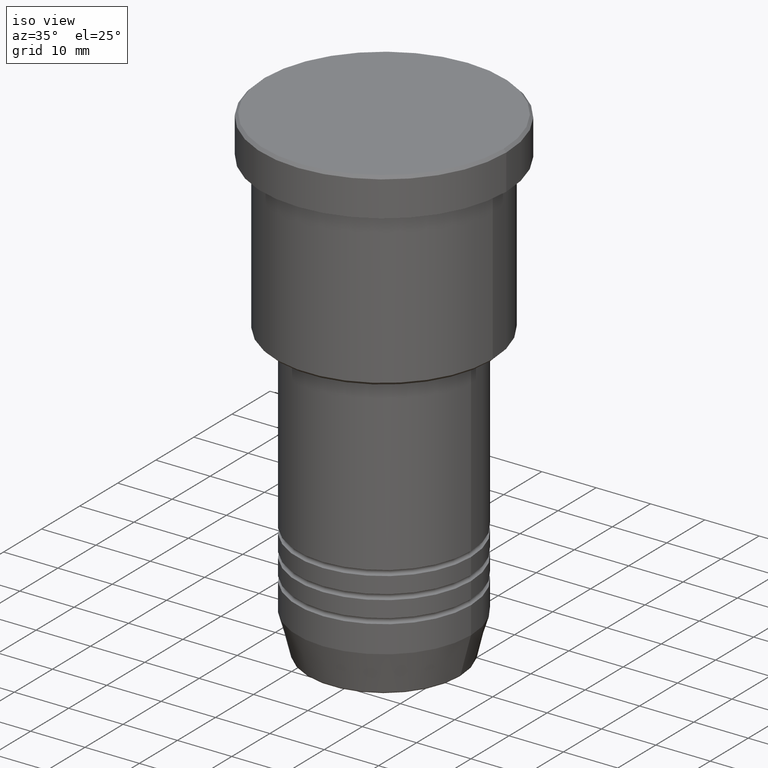
[diagram: clean part render]
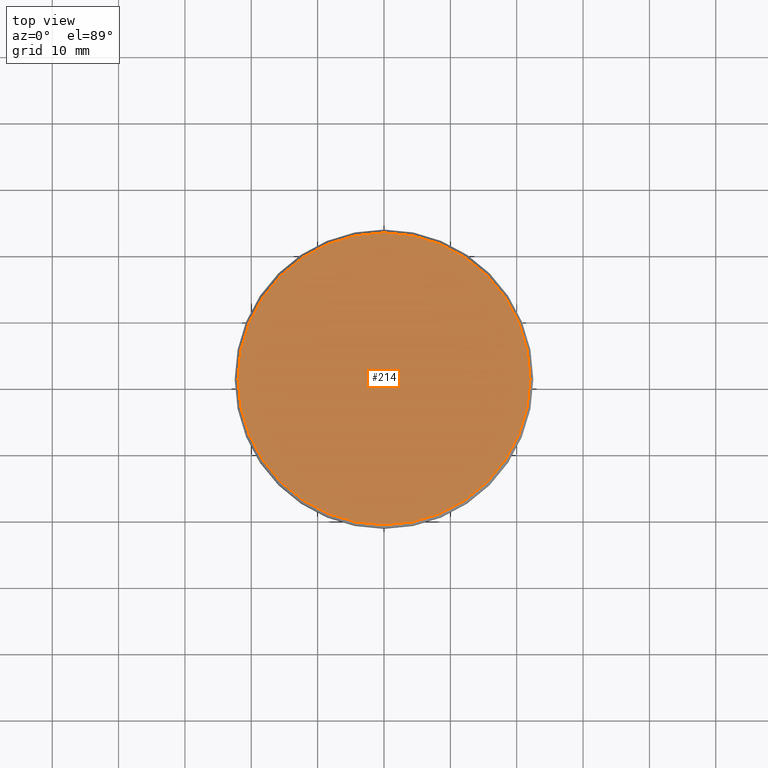
[diagram: tour spotlight — one face highlighted and labeled with its STEP entity id]
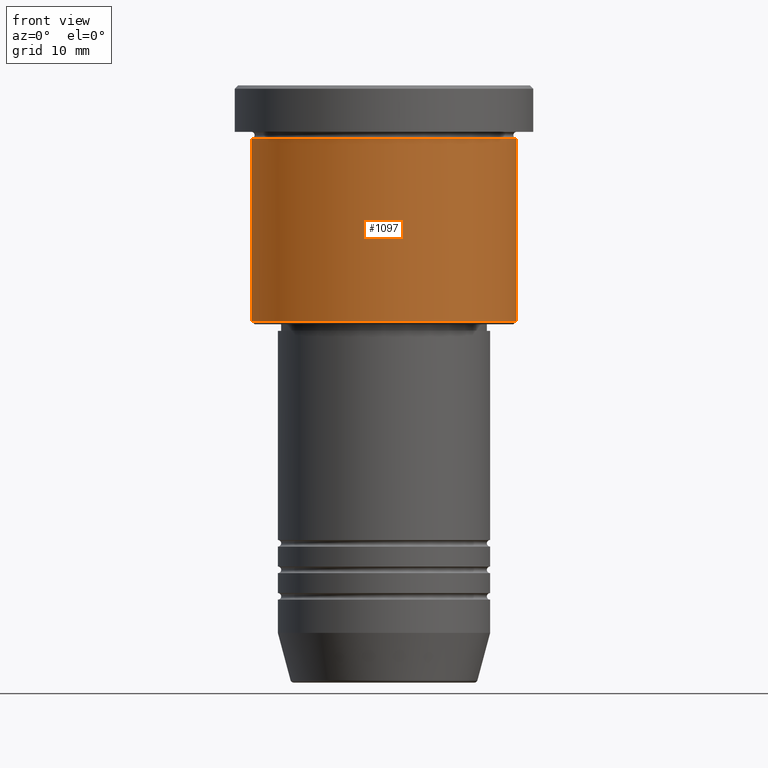
[diagram: tour spotlight — one face highlighted and labeled with its STEP entity id]
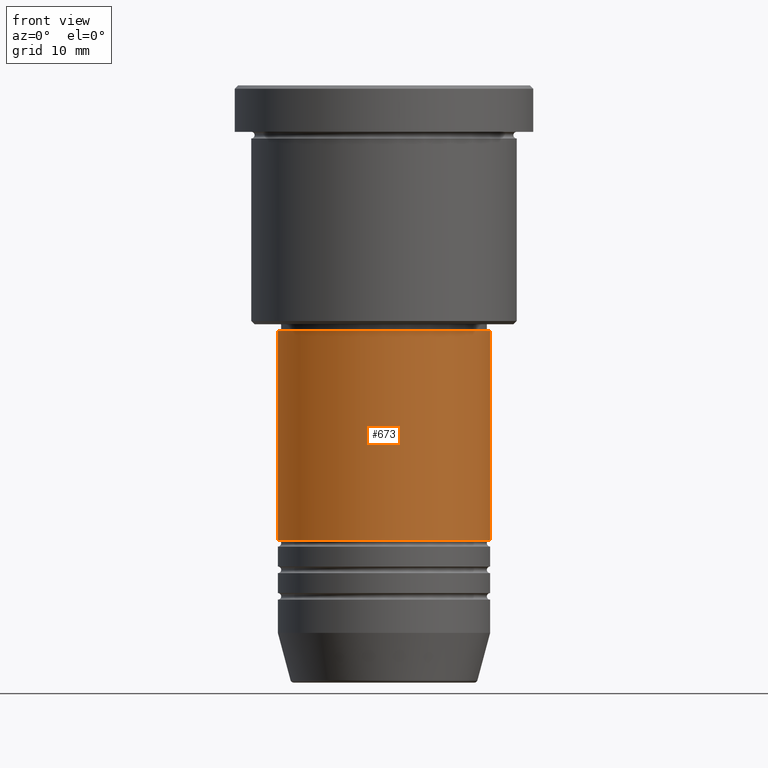
[diagram: tour spotlight — one face highlighted and labeled with its STEP entity id]
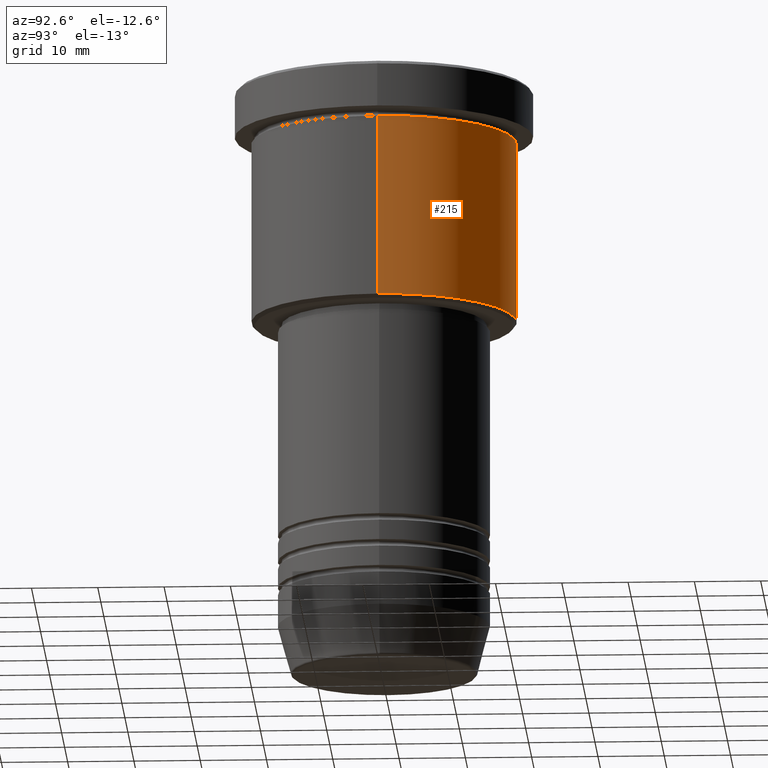
[diagram: tour spotlight — one face highlighted and labeled with its STEP entity id]
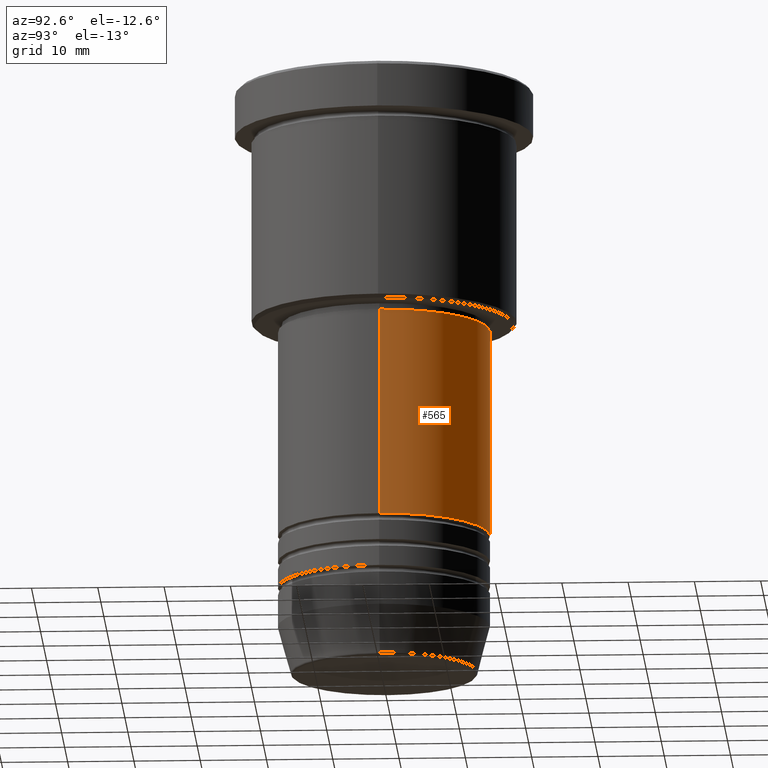
[diagram: tour spotlight — one face highlighted and labeled with its STEP entity id]
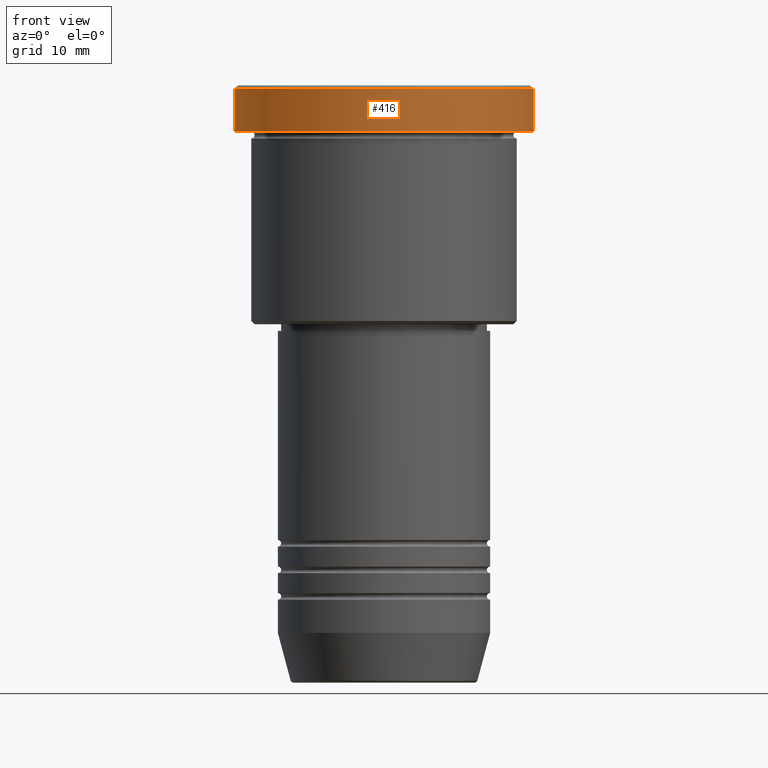
[diagram: tour spotlight — one face highlighted and labeled with its STEP entity id]
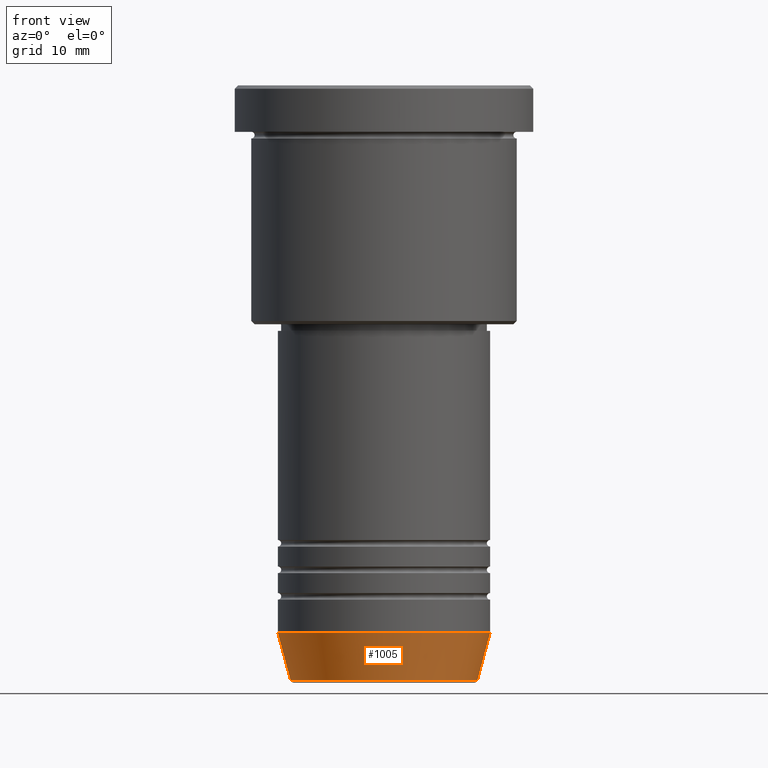
[diagram: tour spotlight — one face highlighted and labeled with its STEP entity id]
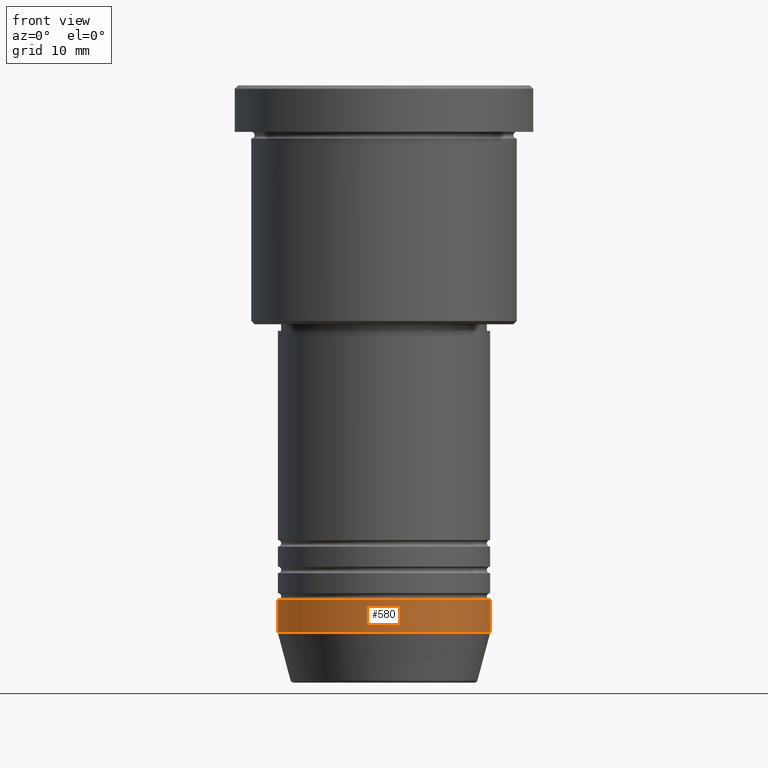
[diagram: tour spotlight — one face highlighted and labeled with its STEP entity id]
A machine part: a face-by-face anatomy tour. The part has 43 B-rep faces; the first image is the clean iso view, then the 8 largest visible faces are spotlighted one at a time (largest first), each with its STEP entity span.

Face 1 — top view, entity #214. In plain terms, the highlighted planar face has unit normal (0, -0, 1).
Definition (entity closure, byte-faithful):
#43 = DIRECTION ( 'NONE',  ( -0.000000000000000000, -0.000000000000000000, 1.000000000000000000 ) ) ;
#127 = CIRCLE ( 'NONE', #407, 21.99999999999999289 ) ;
#151 = FACE_OUTER_BOUND ( 'NONE', #1134, .T. ) ;
#214 = ADVANCED_FACE ( 'NONE', ( #151 ), #699, .T. ) ;
#255 = ORIENTED_EDGE ( 'NONE', *, *, #789, .T. ) ;
#279 = AXIS2_PLACEMENT_3D ( 'NONE', #443, #715, #1066 ) ;
#348 = EDGE_CURVE ( 'NONE', #481, #400, #127, .T. ) ;
#352 = CARTESIAN_POINT ( 'NONE',  ( 0.000000000000000000, 0.000000000000000000, 0.000000000000000000 ) ) ;
#392 = CIRCLE ( 'NONE', #430, 21.99999999999999289 ) ;
#400 = VERTEX_POINT ( 'NONE', #496 ) ;
#407 = AXIS2_PLACEMENT_3D ( 'NONE', #859, #43, #863 ) ;
#430 = AXIS2_PLACEMENT_3D ( 'NONE', #352, #722, #621 ) ;
#443 = CARTESIAN_POINT ( 'NONE',  ( 0.000000000000000000, 0.000000000000000000, 0.000000000000000000 ) ) ;
#481 = VERTEX_POINT ( 'NONE', #788 ) ;
#496 = CARTESIAN_POINT ( 'NONE',  ( 21.99999999999999289, 2.724839128102860202E-15, 0.000000000000000000 ) ) ;
#621 = DIRECTION ( 'NONE',  ( 1.000000000000000000, 0.000000000000000000, 0.000000000000000000 ) ) ;
#699 = PLANE ( 'NONE',  #279 ) ;
#715 = DIRECTION ( 'NONE',  ( 0.000000000000000000, -0.000000000000000000, 1.000000000000000000 ) ) ;
#722 = DIRECTION ( 'NONE',  ( -0.000000000000000000, -0.000000000000000000, 1.000000000000000000 ) ) ;
#788 = CARTESIAN_POINT ( 'NONE',  ( -21.99999999999999289, 0.000000000000000000, 0.000000000000000000 ) ) ;
#789 = EDGE_CURVE ( 'NONE', #400, #481, #392, .T. ) ;
#858 = ORIENTED_EDGE ( 'NONE', *, *, #348, .T. ) ;
#859 = CARTESIAN_POINT ( 'NONE',  ( 0.000000000000000000, 0.000000000000000000, 0.000000000000000000 ) ) ;
#863 = DIRECTION ( 'NONE',  ( 1.000000000000000000, 0.000000000000000000, 0.000000000000000000 ) ) ;
#1066 = DIRECTION ( 'NONE',  ( 1.000000000000000000, 0.000000000000000000, 0.000000000000000000 ) ) ;
#1134 = EDGE_LOOP ( 'NONE', ( #858, #255 ) ) ;

Face 2 — front view, entity #1097. In plain terms, the highlighted cylindrical surface (partial cylindrical patch) has radius 20 mm, axis along (-0, -0, 1).
Definition (entity closure, byte-faithful):
#48 = LINE ( 'NONE', #402, #688 ) ;
#65 = VECTOR ( 'NONE', #709, 1000.000000000000000 ) ;
#72 = ORIENTED_EDGE ( 'NONE', *, *, #488, .T. ) ;
#111 = CIRCLE ( 'NONE', #992, 20.00000000000000000 ) ;
#135 = EDGE_CURVE ( 'NONE', #136, #892, #1077, .T. ) ;
#136 = VERTEX_POINT ( 'NONE', #627 ) ;
#213 = ORIENTED_EDGE ( 'NONE', *, *, #1089, .T. ) ;
#221 = DIRECTION ( 'NONE',  ( 1.000000000000000000, 0.000000000000000000, 0.000000000000000000 ) ) ;
#240 = AXIS2_PLACEMENT_3D ( 'NONE', #1148, #980, #329 ) ;
#257 = EDGE_LOOP ( 'NONE', ( #504, #72, #213, #971 ) ) ;
#322 = DIRECTION ( 'NONE',  ( 1.000000000000000000, 0.000000000000000000, 0.000000000000000000 ) ) ;
#329 = DIRECTION ( 'NONE',  ( -1.000000000000000000, 0.000000000000000000, 0.000000000000000000 ) ) ;
#340 = VERTEX_POINT ( 'NONE', #736 ) ;
#402 = CARTESIAN_POINT ( 'NONE',  ( 20.00000000000000355, 0.000000000000000000, 0.000000000000000000 ) ) ;
#456 = CARTESIAN_POINT ( 'NONE',  ( 20.00000000000000355, 0.000000000000000000, -35.49999999999997868 ) ) ;
#488 = EDGE_CURVE ( 'NONE', #136, #614, #624, .T. ) ;
#504 = ORIENTED_EDGE ( 'NONE', *, *, #135, .F. ) ;
#594 = DIRECTION ( 'NONE',  ( -0.000000000000000000, -0.000000000000000000, 1.000000000000000000 ) ) ;
#614 = VERTEX_POINT ( 'NONE', #456 ) ;
#624 = CIRCLE ( 'NONE', #240, 20.00000000000000355 ) ;
#627 = CARTESIAN_POINT ( 'NONE',  ( -20.00000000000000355, 2.449293598294706907E-15, -35.49999999999997868 ) ) ;
#653 = CARTESIAN_POINT ( 'NONE',  ( -20.00000000000000000, 2.449293598294706513E-15, -7.999999999999994671 ) ) ;
#688 = VECTOR ( 'NONE', #1041, 1000.000000000000000 ) ;
#709 = DIRECTION ( 'NONE',  ( -0.000000000000000000, -0.000000000000000000, 1.000000000000000000 ) ) ;
#725 = AXIS2_PLACEMENT_3D ( 'NONE', #1146, #594, #221 ) ;
#736 = CARTESIAN_POINT ( 'NONE',  ( 20.00000000000000000, 0.000000000000000000, -7.999999999999994671 ) ) ;
#774 = CYLINDRICAL_SURFACE ( 'NONE', #725, 20.00000000000000355 ) ;
#785 = FACE_OUTER_BOUND ( 'NONE', #257, .T. ) ;
#892 = VERTEX_POINT ( 'NONE', #653 ) ;
#947 = DIRECTION ( 'NONE',  ( -0.000000000000000000, -0.000000000000000000, 1.000000000000000000 ) ) ;
#963 = CARTESIAN_POINT ( 'NONE',  ( 0.000000000000000000, 0.000000000000000000, -7.999999999999994671 ) ) ;
#971 = ORIENTED_EDGE ( 'NONE', *, *, #1052, .F. ) ;
#980 = DIRECTION ( 'NONE',  ( -0.000000000000000000, -0.000000000000000000, 1.000000000000000000 ) ) ;
#992 = AXIS2_PLACEMENT_3D ( 'NONE', #963, #947, #322 ) ;
#1041 = DIRECTION ( 'NONE',  ( -0.000000000000000000, -0.000000000000000000, 1.000000000000000000 ) ) ;
#1052 = EDGE_CURVE ( 'NONE', #892, #340, #111, .T. ) ;
#1077 = LINE ( 'NONE', #1149, #65 ) ;
#1089 = EDGE_CURVE ( 'NONE', #614, #340, #48, .T. ) ;
#1097 = ADVANCED_FACE ( 'NONE', ( #785 ), #774, .T. ) ;
#1146 = CARTESIAN_POINT ( 'NONE',  ( 0.000000000000000000, 0.000000000000000000, 0.000000000000000000 ) ) ;
#1148 = CARTESIAN_POINT ( 'NONE',  ( 0.000000000000000000, 0.000000000000000000, -35.49999999999997868 ) ) ;
#1149 = CARTESIAN_POINT ( 'NONE',  ( -20.00000000000000355, 2.449293598294706907E-15, 0.000000000000000000 ) ) ;

Face 3 — front view, entity #673. In plain terms, the highlighted cylindrical surface (partial cylindrical patch) has radius 16 mm, axis along (-0, -0, 1).
Definition (entity closure, byte-faithful):
#103 = CARTESIAN_POINT ( 'NONE',  ( 16.00000000000000000, 0.000000000000000000, -68.49999999999997158 ) ) ;
#132 = CARTESIAN_POINT ( 'NONE',  ( 16.00000000000000000, 0.000000000000000000, -37.00000000000000711 ) ) ;
#133 = VERTEX_POINT ( 'NONE', #417 ) ;
#134 = LINE ( 'NONE', #878, #890 ) ;
#142 = AXIS2_PLACEMENT_3D ( 'NONE', #321, #1124, #397 ) ;
#203 = VECTOR ( 'NONE', #886, 1000.000000000000000 ) ;
#228 = EDGE_CURVE ( 'NONE', #577, #1058, #793, .T. ) ;
#286 = ORIENTED_EDGE ( 'NONE', *, *, #1126, .F. ) ;
#304 = CARTESIAN_POINT ( 'NONE',  ( 0.000000000000000000, 0.000000000000000000, -37.00000000000000711 ) ) ;
#316 = VERTEX_POINT ( 'NONE', #641 ) ;
#321 = CARTESIAN_POINT ( 'NONE',  ( 0.000000000000000000, 0.000000000000000000, -68.49999999999997158 ) ) ;
#328 = CYLINDRICAL_SURFACE ( 'NONE', #797, 16.00000000000000000 ) ;
#347 = EDGE_CURVE ( 'NONE', #133, #577, #851, .T. ) ;
#353 = ORIENTED_EDGE ( 'NONE', *, *, #639, .F. ) ;
#397 = DIRECTION ( 'NONE',  ( 1.000000000000000000, 0.000000000000000000, 0.000000000000000000 ) ) ;
#417 = CARTESIAN_POINT ( 'NONE',  ( -16.00000000000000000, 1.959434878635765131E-15, -68.49999999999997158 ) ) ;
#421 = DIRECTION ( 'NONE',  ( 1.000000000000000000, 0.000000000000000000, 0.000000000000000000 ) ) ;
#485 = DIRECTION ( 'NONE',  ( -0.000000000000000000, -0.000000000000000000, 1.000000000000000000 ) ) ;
#577 = VERTEX_POINT ( 'NONE', #103 ) ;
#599 = ORIENTED_EDGE ( 'NONE', *, *, #347, .T. ) ;
#639 = EDGE_CURVE ( 'NONE', #316, #1058, #1064, .T. ) ;
#641 = CARTESIAN_POINT ( 'NONE',  ( -16.00000000000000000, 1.959434878635765131E-15, -37.00000000000000711 ) ) ;
#666 = CARTESIAN_POINT ( 'NONE',  ( 0.000000000000000000, 0.000000000000000000, 0.000000000000000000 ) ) ;
#673 = ADVANCED_FACE ( 'NONE', ( #880 ), #328, .T. ) ;
#701 = AXIS2_PLACEMENT_3D ( 'NONE', #304, #485, #757 ) ;
#757 = DIRECTION ( 'NONE',  ( 1.000000000000000000, 0.000000000000000000, 0.000000000000000000 ) ) ;
#793 = LINE ( 'NONE', #1157, #203 ) ;
#797 = AXIS2_PLACEMENT_3D ( 'NONE', #666, #972, #421 ) ;
#851 = CIRCLE ( 'NONE', #142, 16.00000000000000000 ) ;
#857 = DIRECTION ( 'NONE',  ( -0.000000000000000000, -0.000000000000000000, 1.000000000000000000 ) ) ;
#878 = CARTESIAN_POINT ( 'NONE',  ( -16.00000000000000000, 1.959434878635765131E-15, 0.000000000000000000 ) ) ;
#880 = FACE_OUTER_BOUND ( 'NONE', #1038, .T. ) ;
#886 = DIRECTION ( 'NONE',  ( -0.000000000000000000, -0.000000000000000000, 1.000000000000000000 ) ) ;
#890 = VECTOR ( 'NONE', #857, 1000.000000000000000 ) ;
#902 = ORIENTED_EDGE ( 'NONE', *, *, #228, .T. ) ;
#972 = DIRECTION ( 'NONE',  ( -0.000000000000000000, -0.000000000000000000, 1.000000000000000000 ) ) ;
#1038 = EDGE_LOOP ( 'NONE', ( #286, #599, #902, #353 ) ) ;
#1058 = VERTEX_POINT ( 'NONE', #132 ) ;
#1064 = CIRCLE ( 'NONE', #701, 16.00000000000000000 ) ;
#1124 = DIRECTION ( 'NONE',  ( -0.000000000000000000, -0.000000000000000000, 1.000000000000000000 ) ) ;
#1126 = EDGE_CURVE ( 'NONE', #133, #316, #134, .T. ) ;
#1157 = CARTESIAN_POINT ( 'NONE',  ( 16.00000000000000000, 0.000000000000000000, 0.000000000000000000 ) ) ;

Face 4 — auxiliary view, entity #215. In plain terms, the highlighted cylindrical surface (partial cylindrical patch) has radius 20 mm, axis along (-0, -0, 1).
Definition (entity closure, byte-faithful):
#48 = LINE ( 'NONE', #402, #688 ) ;
#62 = DIRECTION ( 'NONE',  ( 1.000000000000000000, 0.000000000000000000, 0.000000000000000000 ) ) ;
#65 = VECTOR ( 'NONE', #709, 1000.000000000000000 ) ;
#78 = DIRECTION ( 'NONE',  ( -1.000000000000000000, 0.000000000000000000, 0.000000000000000000 ) ) ;
#89 = CIRCLE ( 'NONE', #766, 20.00000000000000000 ) ;
#115 = CARTESIAN_POINT ( 'NONE',  ( 0.000000000000000000, 0.000000000000000000, -7.999999999999994671 ) ) ;
#135 = EDGE_CURVE ( 'NONE', #136, #892, #1077, .T. ) ;
#136 = VERTEX_POINT ( 'NONE', #627 ) ;
#148 = EDGE_LOOP ( 'NONE', ( #1130, #445, #323, #798 ) ) ;
#215 = ADVANCED_FACE ( 'NONE', ( #432 ), #242, .T. ) ;
#242 = CYLINDRICAL_SURFACE ( 'NONE', #720, 20.00000000000000355 ) ;
#323 = ORIENTED_EDGE ( 'NONE', *, *, #938, .F. ) ;
#340 = VERTEX_POINT ( 'NONE', #736 ) ;
#362 = DIRECTION ( 'NONE',  ( -0.000000000000000000, -0.000000000000000000, 1.000000000000000000 ) ) ;
#402 = CARTESIAN_POINT ( 'NONE',  ( 20.00000000000000355, 0.000000000000000000, 0.000000000000000000 ) ) ;
#432 = FACE_OUTER_BOUND ( 'NONE', #148, .T. ) ;
#445 = ORIENTED_EDGE ( 'NONE', *, *, #135, .T. ) ;
#456 = CARTESIAN_POINT ( 'NONE',  ( 20.00000000000000355, 0.000000000000000000, -35.49999999999997868 ) ) ;
#460 = DIRECTION ( 'NONE',  ( 1.000000000000000000, 0.000000000000000000, 0.000000000000000000 ) ) ;
#464 = DIRECTION ( 'NONE',  ( -0.000000000000000000, -0.000000000000000000, 1.000000000000000000 ) ) ;
#511 = DIRECTION ( 'NONE',  ( -0.000000000000000000, -0.000000000000000000, 1.000000000000000000 ) ) ;
#544 = CARTESIAN_POINT ( 'NONE',  ( 0.000000000000000000, 0.000000000000000000, -35.49999999999997868 ) ) ;
#598 = EDGE_CURVE ( 'NONE', #614, #136, #868, .T. ) ;
#614 = VERTEX_POINT ( 'NONE', #456 ) ;
#627 = CARTESIAN_POINT ( 'NONE',  ( -20.00000000000000355, 2.449293598294706907E-15, -35.49999999999997868 ) ) ;
#653 = CARTESIAN_POINT ( 'NONE',  ( -20.00000000000000000, 2.449293598294706513E-15, -7.999999999999994671 ) ) ;
#688 = VECTOR ( 'NONE', #1041, 1000.000000000000000 ) ;
#709 = DIRECTION ( 'NONE',  ( -0.000000000000000000, -0.000000000000000000, 1.000000000000000000 ) ) ;
#720 = AXIS2_PLACEMENT_3D ( 'NONE', #881, #511, #62 ) ;
#736 = CARTESIAN_POINT ( 'NONE',  ( 20.00000000000000000, 0.000000000000000000, -7.999999999999994671 ) ) ;
#743 = AXIS2_PLACEMENT_3D ( 'NONE', #544, #362, #78 ) ;
#766 = AXIS2_PLACEMENT_3D ( 'NONE', #115, #464, #460 ) ;
#798 = ORIENTED_EDGE ( 'NONE', *, *, #1089, .F. ) ;
#868 = CIRCLE ( 'NONE', #743, 20.00000000000000355 ) ;
#881 = CARTESIAN_POINT ( 'NONE',  ( 0.000000000000000000, 0.000000000000000000, 0.000000000000000000 ) ) ;
#892 = VERTEX_POINT ( 'NONE', #653 ) ;
#938 = EDGE_CURVE ( 'NONE', #340, #892, #89, .T. ) ;
#1041 = DIRECTION ( 'NONE',  ( -0.000000000000000000, -0.000000000000000000, 1.000000000000000000 ) ) ;
#1077 = LINE ( 'NONE', #1149, #65 ) ;
#1089 = EDGE_CURVE ( 'NONE', #614, #340, #48, .T. ) ;
#1130 = ORIENTED_EDGE ( 'NONE', *, *, #598, .T. ) ;
#1149 = CARTESIAN_POINT ( 'NONE',  ( -20.00000000000000355, 2.449293598294706907E-15, 0.000000000000000000 ) ) ;

Face 5 — auxiliary view, entity #565. In plain terms, the highlighted cylindrical surface (partial cylindrical patch) has radius 16 mm, axis along (-0, -0, 1).
Definition (entity closure, byte-faithful):
#64 = DIRECTION ( 'NONE',  ( -0.000000000000000000, -0.000000000000000000, 1.000000000000000000 ) ) ;
#74 = DIRECTION ( 'NONE',  ( -0.000000000000000000, -0.000000000000000000, 1.000000000000000000 ) ) ;
#103 = CARTESIAN_POINT ( 'NONE',  ( 16.00000000000000000, 0.000000000000000000, -68.49999999999997158 ) ) ;
#132 = CARTESIAN_POINT ( 'NONE',  ( 16.00000000000000000, 0.000000000000000000, -37.00000000000000711 ) ) ;
#133 = VERTEX_POINT ( 'NONE', #417 ) ;
#134 = LINE ( 'NONE', #878, #890 ) ;
#143 = CIRCLE ( 'NONE', #604, 16.00000000000000000 ) ;
#172 = EDGE_CURVE ( 'NONE', #1058, #316, #835, .T. ) ;
#173 = DIRECTION ( 'NONE',  ( 1.000000000000000000, 0.000000000000000000, 0.000000000000000000 ) ) ;
#203 = VECTOR ( 'NONE', #886, 1000.000000000000000 ) ;
#228 = EDGE_CURVE ( 'NONE', #577, #1058, #793, .T. ) ;
#316 = VERTEX_POINT ( 'NONE', #641 ) ;
#368 = CARTESIAN_POINT ( 'NONE',  ( 0.000000000000000000, 0.000000000000000000, 0.000000000000000000 ) ) ;
#417 = CARTESIAN_POINT ( 'NONE',  ( -16.00000000000000000, 1.959434878635765131E-15, -68.49999999999997158 ) ) ;
#471 = AXIS2_PLACEMENT_3D ( 'NONE', #368, #649, #173 ) ;
#517 = DIRECTION ( 'NONE',  ( 1.000000000000000000, 0.000000000000000000, 0.000000000000000000 ) ) ;
#547 = CARTESIAN_POINT ( 'NONE',  ( 0.000000000000000000, 0.000000000000000000, -68.49999999999997158 ) ) ;
#565 = ADVANCED_FACE ( 'NONE', ( #919 ), #810, .T. ) ;
#577 = VERTEX_POINT ( 'NONE', #103 ) ;
#604 = AXIS2_PLACEMENT_3D ( 'NONE', #547, #64, #1091 ) ;
#638 = ORIENTED_EDGE ( 'NONE', *, *, #172, .F. ) ;
#641 = CARTESIAN_POINT ( 'NONE',  ( -16.00000000000000000, 1.959434878635765131E-15, -37.00000000000000711 ) ) ;
#649 = DIRECTION ( 'NONE',  ( -0.000000000000000000, -0.000000000000000000, 1.000000000000000000 ) ) ;
#659 = ORIENTED_EDGE ( 'NONE', *, *, #768, .T. ) ;
#768 = EDGE_CURVE ( 'NONE', #577, #133, #143, .T. ) ;
#772 = ORIENTED_EDGE ( 'NONE', *, *, #1126, .T. ) ;
#793 = LINE ( 'NONE', #1157, #203 ) ;
#810 = CYLINDRICAL_SURFACE ( 'NONE', #471, 16.00000000000000000 ) ;
#835 = CIRCLE ( 'NONE', #1120, 16.00000000000000000 ) ;
#857 = DIRECTION ( 'NONE',  ( -0.000000000000000000, -0.000000000000000000, 1.000000000000000000 ) ) ;
#872 = EDGE_LOOP ( 'NONE', ( #659, #772, #638, #1114 ) ) ;
#878 = CARTESIAN_POINT ( 'NONE',  ( -16.00000000000000000, 1.959434878635765131E-15, 0.000000000000000000 ) ) ;
#886 = DIRECTION ( 'NONE',  ( -0.000000000000000000, -0.000000000000000000, 1.000000000000000000 ) ) ;
#890 = VECTOR ( 'NONE', #857, 1000.000000000000000 ) ;
#919 = FACE_OUTER_BOUND ( 'NONE', #872, .T. ) ;
#975 = CARTESIAN_POINT ( 'NONE',  ( 0.000000000000000000, 0.000000000000000000, -37.00000000000000711 ) ) ;
#1058 = VERTEX_POINT ( 'NONE', #132 ) ;
#1091 = DIRECTION ( 'NONE',  ( 1.000000000000000000, 0.000000000000000000, 0.000000000000000000 ) ) ;
#1114 = ORIENTED_EDGE ( 'NONE', *, *, #228, .F. ) ;
#1120 = AXIS2_PLACEMENT_3D ( 'NONE', #975, #74, #517 ) ;
#1126 = EDGE_CURVE ( 'NONE', #133, #316, #134, .T. ) ;
#1157 = CARTESIAN_POINT ( 'NONE',  ( 16.00000000000000000, 0.000000000000000000, 0.000000000000000000 ) ) ;

Face 6 — front view, entity #416. In plain terms, the highlighted cylindrical surface (partial cylindrical patch) has radius 22.5 mm, axis along (-0, -0, 1).
Definition (entity closure, byte-faithful):
#57 = CARTESIAN_POINT ( 'NONE',  ( -22.50000000000000000, 2.755455298081544778E-15, -0.4999999999999935052 ) ) ;
#63 = VERTEX_POINT ( 'NONE', #90 ) ;
#76 = ORIENTED_EDGE ( 'NONE', *, *, #861, .T. ) ;
#90 = CARTESIAN_POINT ( 'NONE',  ( 22.50000000000000000, 0.000000000000000000, -6.999999999999995559 ) ) ;
#97 = VERTEX_POINT ( 'NONE', #941 ) ;
#99 = EDGE_CURVE ( 'NONE', #830, #63, #891, .T. ) ;
#119 = CARTESIAN_POINT ( 'NONE',  ( 0.000000000000000000, 0.000000000000000000, -6.999999999999995559 ) ) ;
#131 = FACE_OUTER_BOUND ( 'NONE', #833, .T. ) ;
#137 = EDGE_CURVE ( 'NONE', #830, #453, #168, .T. ) ;
#145 = DIRECTION ( 'NONE',  ( 1.000000000000000000, 0.000000000000000000, 0.000000000000000000 ) ) ;
#159 = CARTESIAN_POINT ( 'NONE',  ( -22.50000000000000000, 2.755455298081544778E-15, -6.999999999999995559 ) ) ;
#168 = LINE ( 'NONE', #719, #739 ) ;
#239 = AXIS2_PLACEMENT_3D ( 'NONE', #531, #995, #145 ) ;
#292 = ORIENTED_EDGE ( 'NONE', *, *, #459, .T. ) ;
#293 = DIRECTION ( 'NONE',  ( -0.000000000000000000, -0.000000000000000000, 1.000000000000000000 ) ) ;
#366 = LINE ( 'NONE', #733, #490 ) ;
#390 = DIRECTION ( 'NONE',  ( 1.000000000000000000, 0.000000000000000000, 0.000000000000000000 ) ) ;
#393 = DIRECTION ( 'NONE',  ( 1.000000000000000000, 0.000000000000000000, 0.000000000000000000 ) ) ;
#401 = CYLINDRICAL_SURFACE ( 'NONE', #723, 22.50000000000000000 ) ;
#416 = ADVANCED_FACE ( 'NONE', ( #131 ), #401, .T. ) ;
#453 = VERTEX_POINT ( 'NONE', #57 ) ;
#459 = EDGE_CURVE ( 'NONE', #97, #453, #763, .T. ) ;
#490 = VECTOR ( 'NONE', #293, 1000.000000000000000 ) ;
#531 = CARTESIAN_POINT ( 'NONE',  ( 0.000000000000000000, 0.000000000000000000, -0.4999999999999935052 ) ) ;
#563 = ORIENTED_EDGE ( 'NONE', *, *, #99, .T. ) ;
#719 = CARTESIAN_POINT ( 'NONE',  ( -22.50000000000000000, 2.755455298081544778E-15, 0.000000000000000000 ) ) ;
#723 = AXIS2_PLACEMENT_3D ( 'NONE', #773, #1132, #390 ) ;
#733 = CARTESIAN_POINT ( 'NONE',  ( 22.50000000000000000, 0.000000000000000000, 0.000000000000000000 ) ) ;
#739 = VECTOR ( 'NONE', #894, 1000.000000000000000 ) ;
#763 = CIRCLE ( 'NONE', #239, 22.50000000000000000 ) ;
#773 = CARTESIAN_POINT ( 'NONE',  ( 0.000000000000000000, 0.000000000000000000, 0.000000000000000000 ) ) ;
#830 = VERTEX_POINT ( 'NONE', #159 ) ;
#833 = EDGE_LOOP ( 'NONE', ( #1159, #563, #76, #292 ) ) ;
#861 = EDGE_CURVE ( 'NONE', #63, #97, #366, .T. ) ;
#891 = CIRCLE ( 'NONE', #1051, 22.50000000000000000 ) ;
#894 = DIRECTION ( 'NONE',  ( -0.000000000000000000, -0.000000000000000000, 1.000000000000000000 ) ) ;
#941 = CARTESIAN_POINT ( 'NONE',  ( 22.50000000000000000, 0.000000000000000000, -0.4999999999999935052 ) ) ;
#995 = DIRECTION ( 'NONE',  ( 0.000000000000000000, 0.000000000000000000, -1.000000000000000000 ) ) ;
#1040 = DIRECTION ( 'NONE',  ( -0.000000000000000000, -0.000000000000000000, 1.000000000000000000 ) ) ;
#1051 = AXIS2_PLACEMENT_3D ( 'NONE', #119, #1040, #393 ) ;
#1132 = DIRECTION ( 'NONE',  ( -0.000000000000000000, -0.000000000000000000, 1.000000000000000000 ) ) ;
#1159 = ORIENTED_EDGE ( 'NONE', *, *, #137, .F. ) ;

Face 7 — front view, entity #1005. In plain terms, the highlighted conical surface has half-angle 15 deg.
Definition (entity closure, byte-faithful):
#22 = CARTESIAN_POINT ( 'NONE',  ( 16.00000000000000000, 0.000000000000000000, -82.49999999999998579 ) ) ;
#23 = CARTESIAN_POINT ( 'NONE',  ( 0.000000000000000000, 0.000000000000000000, -82.49999999999998579 ) ) ;
#55 = CARTESIAN_POINT ( 'NONE',  ( -14.08968047592162698, 1.842461544110201269E-15, -89.62940952255125637 ) ) ;
#56 = VERTEX_POINT ( 'NONE', #22 ) ;
#83 = ORIENTED_EDGE ( 'NONE', *, *, #824, .T. ) ;
#96 = LINE ( 'NONE', #672, #336 ) ;
#183 = CONICAL_SURFACE ( 'NONE', #357, 16.00000000000000000, 0.2617993877991500740 ) ;
#219 = DIRECTION ( 'NONE',  ( 0.2588190451025213501, 0.000000000000000000, 0.9659258262890680902 ) ) ;
#256 = DIRECTION ( 'NONE',  ( -0.000000000000000000, -0.000000000000000000, 1.000000000000000000 ) ) ;
#324 = CARTESIAN_POINT ( 'NONE',  ( 0.000000000000000000, 0.000000000000000000, -82.49999999999998579 ) ) ;
#336 = VECTOR ( 'NONE', #849, 1000.000000000000000 ) ;
#355 = AXIS2_PLACEMENT_3D ( 'NONE', #324, #414, #965 ) ;
#357 = AXIS2_PLACEMENT_3D ( 'NONE', #23, #1010, #842 ) ;
#359 = ORIENTED_EDGE ( 'NONE', *, *, #399, .T. ) ;
#379 = EDGE_LOOP ( 'NONE', ( #728, #83, #359, #1016 ) ) ;
#399 = EDGE_CURVE ( 'NONE', #1092, #56, #581, .T. ) ;
#412 = CARTESIAN_POINT ( 'NONE',  ( 14.08968047592162698, 0.000000000000000000, -89.62940952255125637 ) ) ;
#414 = DIRECTION ( 'NONE',  ( -0.000000000000000000, -0.000000000000000000, 1.000000000000000000 ) ) ;
#571 = CIRCLE ( 'NONE', #355, 16.00000000000000000 ) ;
#581 = LINE ( 'NONE', #1049, #1028 ) ;
#606 = AXIS2_PLACEMENT_3D ( 'NONE', #984, #256, #805 ) ;
#643 = CARTESIAN_POINT ( 'NONE',  ( -16.00000000000000000, 1.959434878635765131E-15, -82.49999999999998579 ) ) ;
#672 = CARTESIAN_POINT ( 'NONE',  ( -16.00000000000000000, 1.959434878635765131E-15, -82.49999999999998579 ) ) ;
#679 = EDGE_CURVE ( 'NONE', #1004, #56, #571, .T. ) ;
#728 = ORIENTED_EDGE ( 'NONE', *, *, #921, .F. ) ;
#805 = DIRECTION ( 'NONE',  ( 1.000000000000000000, 0.000000000000000000, 0.000000000000000000 ) ) ;
#824 = EDGE_CURVE ( 'NONE', #1084, #1092, #1050, .T. ) ;
#842 = DIRECTION ( 'NONE',  ( 1.000000000000000000, 0.000000000000000000, 0.000000000000000000 ) ) ;
#849 = DIRECTION ( 'NONE',  ( -0.2588190451025213501, 3.169619151431772337E-17, 0.9659258262890680902 ) ) ;
#921 = EDGE_CURVE ( 'NONE', #1084, #1004, #96, .T. ) ;
#965 = DIRECTION ( 'NONE',  ( 1.000000000000000000, 0.000000000000000000, 0.000000000000000000 ) ) ;
#984 = CARTESIAN_POINT ( 'NONE',  ( 0.000000000000000000, 0.000000000000000000, -89.62940952255125637 ) ) ;
#1004 = VERTEX_POINT ( 'NONE', #643 ) ;
#1005 = ADVANCED_FACE ( 'NONE', ( #1110 ), #183, .T. ) ;
#1010 = DIRECTION ( 'NONE',  ( -0.000000000000000000, -0.000000000000000000, 1.000000000000000000 ) ) ;
#1016 = ORIENTED_EDGE ( 'NONE', *, *, #679, .F. ) ;
#1028 = VECTOR ( 'NONE', #219, 1000.000000000000000 ) ;
#1049 = CARTESIAN_POINT ( 'NONE',  ( 16.00000000000000000, 0.000000000000000000, -82.49999999999998579 ) ) ;
#1050 = CIRCLE ( 'NONE', #606, 14.08968047592162698 ) ;
#1084 = VERTEX_POINT ( 'NONE', #55 ) ;
#1092 = VERTEX_POINT ( 'NONE', #412 ) ;
#1110 = FACE_OUTER_BOUND ( 'NONE', #379, .T. ) ;

Face 8 — front view, entity #580. In plain terms, the highlighted cylindrical surface (partial cylindrical patch) has radius 16 mm, axis along (-0, -0, 1).
Definition (entity closure, byte-faithful):
#22 = CARTESIAN_POINT ( 'NONE',  ( 16.00000000000000000, 0.000000000000000000, -82.49999999999998579 ) ) ;
#56 = VERTEX_POINT ( 'NONE', #22 ) ;
#68 = VECTOR ( 'NONE', #314, 1000.000000000000000 ) ;
#110 = VERTEX_POINT ( 'NONE', #306 ) ;
#217 = DIRECTION ( 'NONE',  ( -0.000000000000000000, -0.000000000000000000, 1.000000000000000000 ) ) ;
#264 = ORIENTED_EDGE ( 'NONE', *, *, #679, .T. ) ;
#267 = VERTEX_POINT ( 'NONE', #823 ) ;
#278 = CARTESIAN_POINT ( 'NONE',  ( 0.000000000000000000, 0.000000000000000000, 0.000000000000000000 ) ) ;
#306 = CARTESIAN_POINT ( 'NONE',  ( 16.00000000000000000, 0.000000000000000000, -77.49999999999998579 ) ) ;
#311 = ORIENTED_EDGE ( 'NONE', *, *, #1106, .F. ) ;
#314 = DIRECTION ( 'NONE',  ( -0.000000000000000000, -0.000000000000000000, 1.000000000000000000 ) ) ;
#320 = VECTOR ( 'NONE', #358, 1000.000000000000000 ) ;
#324 = CARTESIAN_POINT ( 'NONE',  ( 0.000000000000000000, 0.000000000000000000, -82.49999999999998579 ) ) ;
#351 = ORIENTED_EDGE ( 'NONE', *, *, #1174, .T. ) ;
#355 = AXIS2_PLACEMENT_3D ( 'NONE', #324, #414, #965 ) ;
#358 = DIRECTION ( 'NONE',  ( -0.000000000000000000, -0.000000000000000000, 1.000000000000000000 ) ) ;
#414 = DIRECTION ( 'NONE',  ( -0.000000000000000000, -0.000000000000000000, 1.000000000000000000 ) ) ;
#451 = CIRCLE ( 'NONE', #912, 16.00000000000000000 ) ;
#529 = AXIS2_PLACEMENT_3D ( 'NONE', #278, #660, #726 ) ;
#546 = ORIENTED_EDGE ( 'NONE', *, *, #1151, .F. ) ;
#571 = CIRCLE ( 'NONE', #355, 16.00000000000000000 ) ;
#580 = ADVANCED_FACE ( 'NONE', ( #752 ), #1112, .T. ) ;
#590 = LINE ( 'NONE', #1133, #68 ) ;
#597 = LINE ( 'NONE', #803, #320 ) ;
#643 = CARTESIAN_POINT ( 'NONE',  ( -16.00000000000000000, 1.959434878635765131E-15, -82.49999999999998579 ) ) ;
#660 = DIRECTION ( 'NONE',  ( -0.000000000000000000, -0.000000000000000000, 1.000000000000000000 ) ) ;
#679 = EDGE_CURVE ( 'NONE', #1004, #56, #571, .T. ) ;
#726 = DIRECTION ( 'NONE',  ( 1.000000000000000000, 0.000000000000000000, 0.000000000000000000 ) ) ;
#752 = FACE_OUTER_BOUND ( 'NONE', #1161, .T. ) ;
#803 = CARTESIAN_POINT ( 'NONE',  ( 16.00000000000000000, 0.000000000000000000, 0.000000000000000000 ) ) ;
#823 = CARTESIAN_POINT ( 'NONE',  ( -16.00000000000000000, 1.959434878635765131E-15, -77.49999999999998579 ) ) ;
#912 = AXIS2_PLACEMENT_3D ( 'NONE', #1125, #217, #1129 ) ;
#965 = DIRECTION ( 'NONE',  ( 1.000000000000000000, 0.000000000000000000, 0.000000000000000000 ) ) ;
#1004 = VERTEX_POINT ( 'NONE', #643 ) ;
#1106 = EDGE_CURVE ( 'NONE', #1004, #267, #590, .T. ) ;
#1112 = CYLINDRICAL_SURFACE ( 'NONE', #529, 16.00000000000000000 ) ;
#1125 = CARTESIAN_POINT ( 'NONE',  ( 0.000000000000000000, 0.000000000000000000, -77.49999999999998579 ) ) ;
#1129 = DIRECTION ( 'NONE',  ( 1.000000000000000000, 0.000000000000000000, 0.000000000000000000 ) ) ;
#1133 = CARTESIAN_POINT ( 'NONE',  ( -16.00000000000000000, 1.959434878635765131E-15, 0.000000000000000000 ) ) ;
#1151 = EDGE_CURVE ( 'NONE', #267, #110, #451, .T. ) ;
#1161 = EDGE_LOOP ( 'NONE', ( #311, #264, #351, #546 ) ) ;
#1174 = EDGE_CURVE ( 'NONE', #56, #110, #597, .T. ) ;